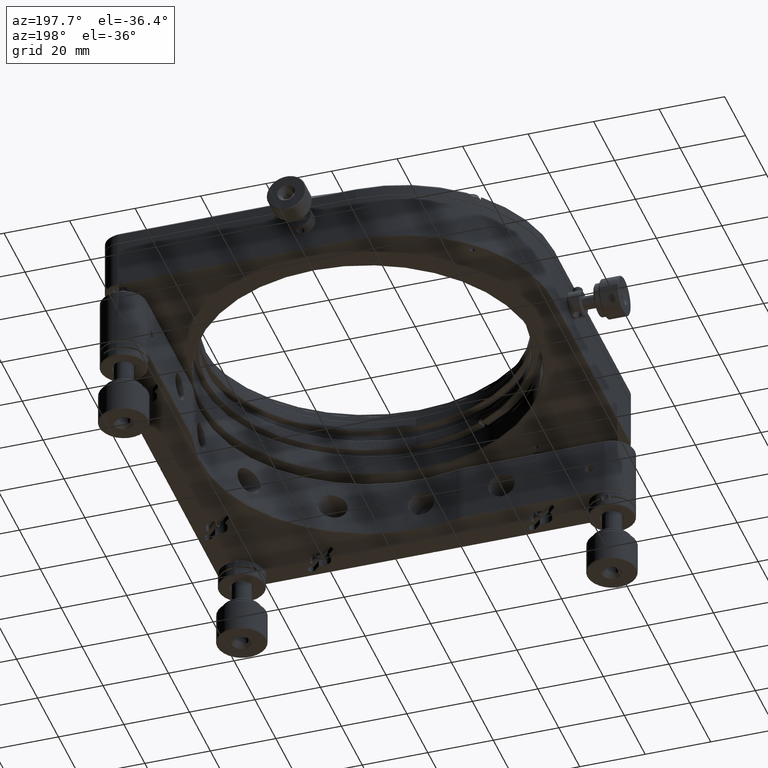
[diagram: clean part render]
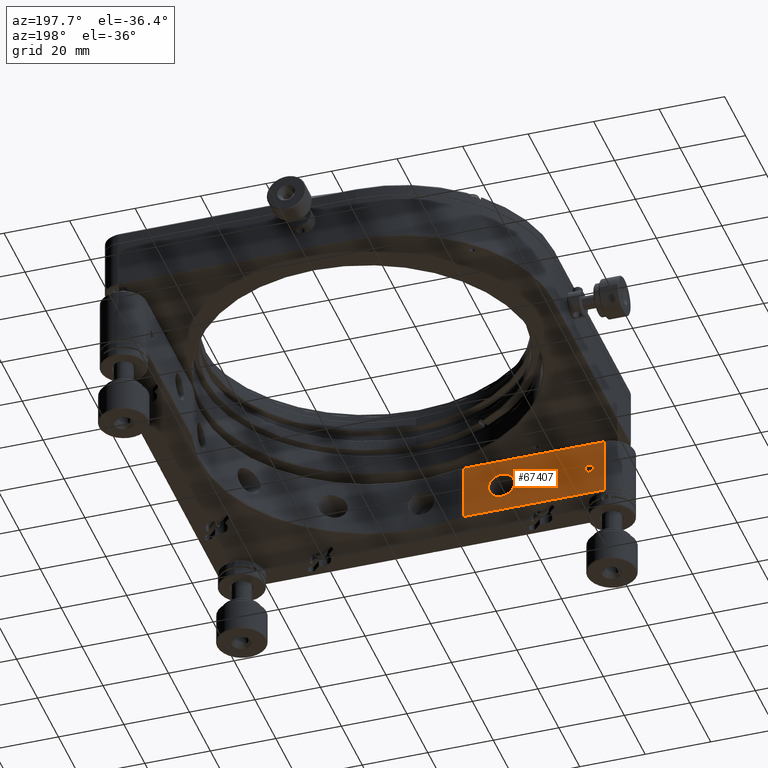
[diagram: same view with one face highlighted and labeled with its STEP entity id]
A machine part, auxiliary view. The second image highlights one B-rep face of the part: STEP entity #67407.
In plain terms, the highlighted planar face has unit normal (-0, -1, 0).
Its self-contained STEP definition (entity closure, byte-faithful):
#199 = CARTESIAN_POINT ( 'NONE',  ( -56.49999999999999289, -49.50000000001171685, 8.700000000003440093 ) ) ;
#292 = ORIENTED_EDGE ( 'NONE', *, *, #115175, .F. ) ;
#7891 = AXIS2_PLACEMENT_3D ( 'NONE', #117438, #142710, #84445 ) ;
#12561 = CARTESIAN_POINT ( 'NONE',  ( -25.00000000000000000, -49.50000000000000711, 3.061616997868382254E-15 ) ) ;
#12806 = PLANE ( 'NONE',  #143980 ) ;
#19506 = ORIENTED_EDGE ( 'NONE', *, *, #79899, .F. ) ;
#21582 = VECTOR ( 'NONE', #79923, 1000.000000000000000 ) ;
#21783 = DIRECTION ( 'NONE',  ( 0.000000000000000000, 0.000000000000000000, 1.000000000000000000 ) ) ;
#26423 = DIRECTION ( 'NONE',  ( -0.000000000000000000, -0.000000000000000000, -1.000000000000000000 ) ) ;
#30417 = DIRECTION ( 'NONE',  ( 1.000000000000000000, -1.354671401708675261E-16, 0.000000000000000000 ) ) ;
#30942 = DIRECTION ( 'NONE',  ( -1.000000000000000000, 6.773357008543412048E-17, 6.773357008543376303E-17 ) ) ;
#33020 = ORIENTED_EDGE ( 'NONE', *, *, #120271, .F. ) ;
#33295 = EDGE_LOOP ( 'NONE', ( #116226, #33020 ) ) ;
#33849 = CARTESIAN_POINT ( 'NONE',  ( -13.44432965974870520, -49.50000000000000711, -9.000000000000001776 ) ) ;
#34969 = VERTEX_POINT ( 'NONE', #199 ) ;
#35438 = VERTEX_POINT ( 'NONE', #112782 ) ;
#35649 = CARTESIAN_POINT ( 'NONE',  ( -56.50000000000000000, -49.50000000000000000, -9.000000000000001776 ) ) ;
#36966 = EDGE_CURVE ( 'NONE', #67081, #40557, #76640, .T. ) ;
#39647 = VECTOR ( 'NONE', #30942, 1000.000000000000000 ) ;
#40557 = VERTEX_POINT ( 'NONE', #137997 ) ;
#42055 = DIRECTION ( 'NONE',  ( 0.000000000000000000, 0.000000000000000000, 1.000000000000000000 ) ) ;
#44205 = ORIENTED_EDGE ( 'NONE', *, *, #53735, .F. ) ;
#45500 = VERTEX_POINT ( 'NONE', #151630 ) ;
#46136 = LINE ( 'NONE', #33849, #21582 ) ;
#48692 = LINE ( 'NONE', #35649, #144351 ) ;
#49488 = ORIENTED_EDGE ( 'NONE', *, *, #73002, .F. ) ;
#50364 = FACE_OUTER_BOUND ( 'NONE', #138671, .T. ) ;
#52554 = EDGE_LOOP ( 'NONE', ( #44205, #110493 ) ) ;
#53735 = EDGE_CURVE ( 'NONE', #45500, #84233, #91295, .T. ) ;
#55681 = LINE ( 'NONE', #135514, #97415 ) ;
#67081 = VERTEX_POINT ( 'NONE', #80376 ) ;
#67407 = ADVANCED_FACE ( 'NONE', ( #50364, #130187, #143959 ), #12806, .F. ) ;
#70898 = DIRECTION ( 'NONE',  ( 0.000000000000000000, 1.000000000000000000, 0.000000000000000000 ) ) ;
#71351 = VERTEX_POINT ( 'NONE', #94718 ) ;
#72436 = DIRECTION ( 'NONE',  ( 0.000000000000000000, 0.000000000000000000, 1.000000000000000000 ) ) ;
#73002 = EDGE_CURVE ( 'NONE', #71351, #34969, #91540, .T. ) ;
#74181 = DIRECTION ( 'NONE',  ( -1.354671401708675261E-16, -1.000000000000000000, 0.000000000000000000 ) ) ;
#76381 = EDGE_CURVE ( 'NONE', #84233, #45500, #137980, .T. ) ;
#76640 = CIRCLE ( 'NONE', #7891, 1.249999999999983791 ) ;
#79899 = EDGE_CURVE ( 'NONE', #34969, #105913, #48692, .T. ) ;
#79923 = DIRECTION ( 'NONE',  ( 0.000000000000000000, 0.000000000000000000, 1.000000000000000000 ) ) ;
#80376 = CARTESIAN_POINT ( 'NONE',  ( -51.75000000000001421, -49.50000000000000000, 1.249999999999983791 ) ) ;
#84233 = VERTEX_POINT ( 'NONE', #125134 ) ;
#84445 = DIRECTION ( 'NONE',  ( 0.000000000000000000, 0.000000000000000000, 1.000000000000000000 ) ) ;
#91295 = CIRCLE ( 'NONE', #135314, 3.999999999999994671 ) ;
#91540 = LINE ( 'NONE', #113796, #39647 ) ;
#94718 = CARTESIAN_POINT ( 'NONE',  ( -13.44432965974868033, -49.50000000000000000, 8.699999999999974420 ) ) ;
#97415 = VECTOR ( 'NONE', #30417, 1000.000000000000000 ) ;
#98056 = CIRCLE ( 'NONE', #112703, 1.249999999999983791 ) ;
#100447 = ORIENTED_EDGE ( 'NONE', *, *, #139275, .F. ) ;
#105913 = VERTEX_POINT ( 'NONE', #140638 ) ;
#110493 = ORIENTED_EDGE ( 'NONE', *, *, #76381, .F. ) ;
#112703 = AXIS2_PLACEMENT_3D ( 'NONE', #145213, #119969, #72436 ) ;
#112782 = CARTESIAN_POINT ( 'NONE',  ( -13.44432965974870520, -49.50000000000000711, -8.699999999999951328 ) ) ;
#113796 = CARTESIAN_POINT ( 'NONE',  ( -63.50000000000000000, -49.50000000000000000, 8.699999999999979750 ) ) ;
#115175 = EDGE_CURVE ( 'NONE', #35438, #71351, #46136, .T. ) ;
#116226 = ORIENTED_EDGE ( 'NONE', *, *, #36966, .F. ) ;
#117438 = CARTESIAN_POINT ( 'NONE',  ( -51.75000000000001421, -49.50000000000000000, 0.000000000000000000 ) ) ;
#119969 = DIRECTION ( 'NONE',  ( 0.000000000000000000, 1.000000000000000000, 0.000000000000000000 ) ) ;
#120271 = EDGE_CURVE ( 'NONE', #40557, #67081, #98056, .T. ) ;
#120959 = DIRECTION ( 'NONE',  ( 1.000000000000000000, -1.354671401708675261E-16, 0.000000000000000000 ) ) ;
#123407 = CARTESIAN_POINT ( 'NONE',  ( -25.00000000000000000, -49.50000000000000711, 3.061616997868382254E-15 ) ) ;
#125134 = CARTESIAN_POINT ( 'NONE',  ( -25.00000000000000000, -49.50000000000000711, -3.999999999999991562 ) ) ;
#128158 = AXIS2_PLACEMENT_3D ( 'NONE', #12561, #70898, #21783 ) ;
#130187 = FACE_BOUND ( 'NONE', #33295, .T. ) ;
#135314 = AXIS2_PLACEMENT_3D ( 'NONE', #123407, #146415, #42055 ) ;
#135514 = CARTESIAN_POINT ( 'NONE',  ( -63.50000000000000000, -49.50000000000000000, -8.699999999999949551 ) ) ;
#137980 = CIRCLE ( 'NONE', #128158, 3.999999999999994671 ) ;
#137997 = CARTESIAN_POINT ( 'NONE',  ( -51.75000000000001421, -49.50000000000000000, -1.249999999999983791 ) ) ;
#138671 = EDGE_LOOP ( 'NONE', ( #49488, #292, #100447, #19506 ) ) ;
#139275 = EDGE_CURVE ( 'NONE', #105913, #35438, #55681, .T. ) ;
#140638 = CARTESIAN_POINT ( 'NONE',  ( -56.49999999999999289, -49.50000000000580513, -8.700000000022427571 ) ) ;
#141691 = CARTESIAN_POINT ( 'NONE',  ( -63.50000000000000000, -49.50000000000000000, -9.000000000000001776 ) ) ;
#142710 = DIRECTION ( 'NONE',  ( 0.000000000000000000, 1.000000000000000000, 0.000000000000000000 ) ) ;
#143959 = FACE_BOUND ( 'NONE', #52554, .T. ) ;
#143980 = AXIS2_PLACEMENT_3D ( 'NONE', #141691, #74181, #120959 ) ;
#144351 = VECTOR ( 'NONE', #26423, 1000.000000000000000 ) ;
#145213 = CARTESIAN_POINT ( 'NONE',  ( -51.75000000000001421, -49.50000000000000000, 0.000000000000000000 ) ) ;
#146415 = DIRECTION ( 'NONE',  ( 0.000000000000000000, 1.000000000000000000, 0.000000000000000000 ) ) ;
#151630 = CARTESIAN_POINT ( 'NONE',  ( -25.00000000000000000, -49.50000000000000711, 3.999999999999998224 ) ) ;